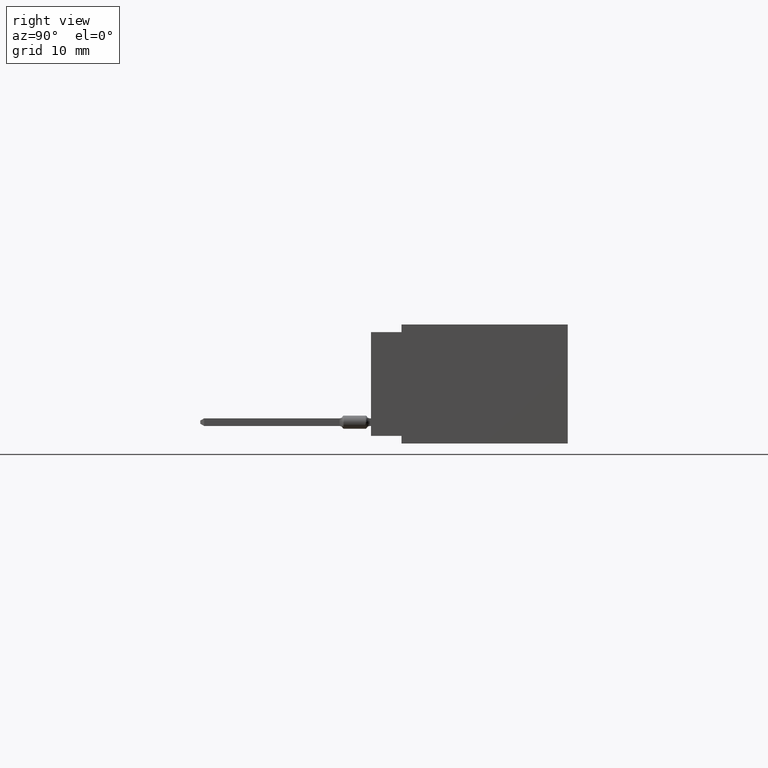
[diagram: clean part render]
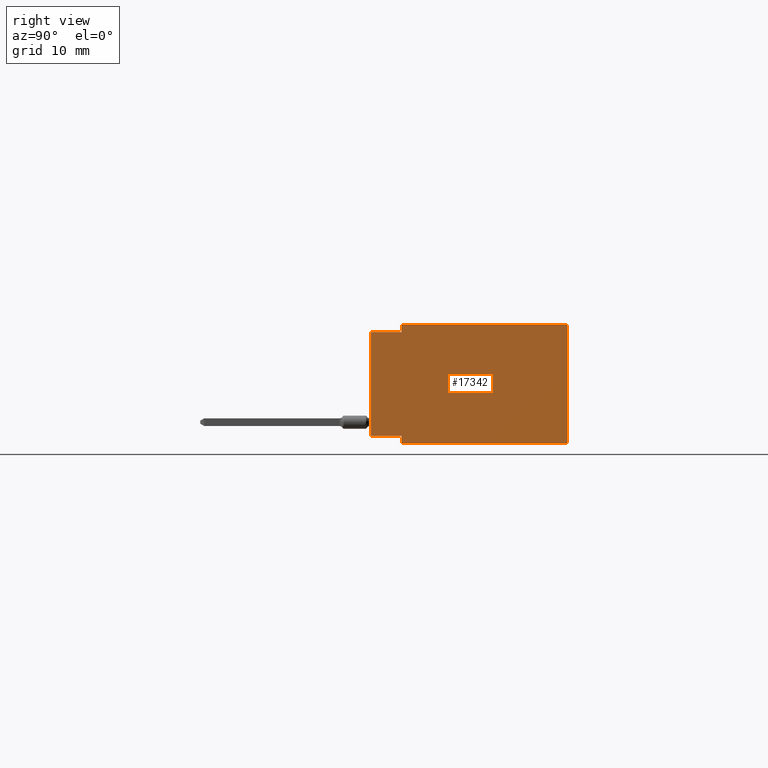
[diagram: same view with one face highlighted and labeled with its STEP entity id]
A machine part, right view. The second image highlights one B-rep face of the part: STEP entity #17342.
In plain terms, the highlighted planar face has unit normal (-1, 0, 0).
Its self-contained STEP definition (entity closure, byte-faithful):
#48 = FACE_OUTER_BOUND ( 'NONE', #20001, .T. ) ;
#581 = LINE ( 'NONE', #1972, #24839 ) ;
#1217 = DIRECTION ( 'NONE',  ( 0.0000000000000000000, 0.0000000000000000000, -1.000000000000000000 ) ) ;
#1577 = ORIENTED_EDGE ( 'NONE', *, *, #14865, .T. ) ;
#1972 = CARTESIAN_POINT ( 'NONE',  ( 2.035000000000000142, 0.1000000000000000056, -0.3900000000000000133 ) ) ;
#2169 = CARTESIAN_POINT ( 'NONE',  ( 2.035000000000000142, 0.0000000000000000000, -0.3649999999999999911 ) ) ;
#2182 = DIRECTION ( 'NONE',  ( 0.0000000000000000000, 0.0000000000000000000, 1.000000000000000000 ) ) ;
#2878 = DIRECTION ( 'NONE',  ( -0.0000000000000000000, -1.000000000000000000, -0.0000000000000000000 ) ) ;
#2960 = ORIENTED_EDGE ( 'NONE', *, *, #22961, .T. ) ;
#3009 = CARTESIAN_POINT ( 'NONE',  ( 2.035000000000000142, 0.0000000000000000000, -0.02500000000000000486 ) ) ;
#3158 = CARTESIAN_POINT ( 'NONE',  ( 2.035000000000000142, 0.6449999999999999067, 0.0000000000000000000 ) ) ;
#3399 = EDGE_CURVE ( 'NONE', #6872, #7502, #6926, .T. ) ;
#3991 = EDGE_CURVE ( 'NONE', #20744, #13765, #15153, .T. ) ;
#4098 = DIRECTION ( 'NONE',  ( -1.000000000000000000, 0.0000000000000000000, 0.0000000000000000000 ) ) ;
#4508 = VECTOR ( 'NONE', #6416, 39.37007874015748143 ) ;
#4723 = CARTESIAN_POINT ( 'NONE',  ( 2.035000000000000142, 0.1000000000000000056, 0.0000000000000000000 ) ) ;
#4839 = VECTOR ( 'NONE', #9357, 39.37007874015748143 ) ;
#5020 = DIRECTION ( 'NONE',  ( -0.0000000000000000000, -0.0000000000000000000, -1.000000000000000000 ) ) ;
#5430 = ORIENTED_EDGE ( 'NONE', *, *, #3399, .F. ) ;
#5729 = CARTESIAN_POINT ( 'NONE',  ( 2.035000000000000142, 0.0000000000000000000, 0.0000000000000000000 ) ) ;
#5793 = DIRECTION ( 'NONE',  ( -0.0000000000000000000, -1.000000000000000000, -0.0000000000000000000 ) ) ;
#6031 = VECTOR ( 'NONE', #5793, 39.37007874015748143 ) ;
#6123 = CARTESIAN_POINT ( 'NONE',  ( 2.035000000000000142, 0.6449999999999999067, -0.3900000000000000133 ) ) ;
#6137 = VERTEX_POINT ( 'NONE', #12129 ) ;
#6416 = DIRECTION ( 'NONE',  ( -0.0000000000000000000, -1.000000000000000000, -0.0000000000000000000 ) ) ;
#6568 = ORIENTED_EDGE ( 'NONE', *, *, #3991, .T. ) ;
#6855 = ORIENTED_EDGE ( 'NONE', *, *, #14516, .T. ) ;
#6872 = VERTEX_POINT ( 'NONE', #3158 ) ;
#6926 = LINE ( 'NONE', #12796, #20055 ) ;
#7502 = VERTEX_POINT ( 'NONE', #6123 ) ;
#8854 = CARTESIAN_POINT ( 'NONE',  ( 2.035000000000000142, 0.6449999999999999067, -0.3900000000000000133 ) ) ;
#9357 = DIRECTION ( 'NONE',  ( 0.0000000000000000000, 0.0000000000000000000, -1.000000000000000000 ) ) ;
#9521 = CARTESIAN_POINT ( 'NONE',  ( 2.035000000000000142, 0.0000000000000000000, -0.02500000000000000486 ) ) ;
#9770 = LINE ( 'NONE', #23221, #6031 ) ;
#10430 = LINE ( 'NONE', #3009, #17157 ) ;
#10627 = LINE ( 'NONE', #8854, #4508 ) ;
#10933 = EDGE_CURVE ( 'NONE', #15400, #20744, #10430, .T. ) ;
#11643 = CARTESIAN_POINT ( 'NONE',  ( 2.035000000000000142, 0.1000000000000000056, 0.0000000000000000000 ) ) ;
#11745 = DIRECTION ( 'NONE',  ( 0.0000000000000000000, 1.000000000000000000, 0.0000000000000000000 ) ) ;
#12129 = CARTESIAN_POINT ( 'NONE',  ( 2.035000000000000142, 0.1000000000000000056, -0.3649999999999999911 ) ) ;
#12796 = CARTESIAN_POINT ( 'NONE',  ( 2.035000000000000142, 0.6449999999999999067, 0.0000000000000000000 ) ) ;
#12818 = VECTOR ( 'NONE', #11745, 39.37007874015748143 ) ;
#13547 = ORIENTED_EDGE ( 'NONE', *, *, #18139, .T. ) ;
#13657 = CARTESIAN_POINT ( 'NONE',  ( 2.035000000000000142, 0.1000000000000000056, -0.02500000000000000486 ) ) ;
#13765 = VERTEX_POINT ( 'NONE', #15819 ) ;
#14516 = EDGE_CURVE ( 'NONE', #6872, #21975, #9770, .T. ) ;
#14687 = ORIENTED_EDGE ( 'NONE', *, *, #17006, .F. ) ;
#14865 = EDGE_CURVE ( 'NONE', #21975, #15400, #17107, .T. ) ;
#15153 = LINE ( 'NONE', #5729, #16298 ) ;
#15400 = VERTEX_POINT ( 'NONE', #13657 ) ;
#15819 = CARTESIAN_POINT ( 'NONE',  ( 2.035000000000000142, 0.0000000000000000000, -0.3649999999999999911 ) ) ;
#16298 = VECTOR ( 'NONE', #17193, 39.37007874015748143 ) ;
#17006 = EDGE_CURVE ( 'NONE', #7502, #19642, #10627, .T. ) ;
#17107 = LINE ( 'NONE', #11643, #4839 ) ;
#17157 = VECTOR ( 'NONE', #2878, 39.37007874015748143 ) ;
#17193 = DIRECTION ( 'NONE',  ( 0.0000000000000000000, 0.0000000000000000000, -1.000000000000000000 ) ) ;
#17342 = ADVANCED_FACE ( 'NONE', ( #48 ), #19501, .F. ) ;
#18139 = EDGE_CURVE ( 'NONE', #6137, #19642, #581, .T. ) ;
#18338 = AXIS2_PLACEMENT_3D ( 'NONE', #23445, #4098, #2182 ) ;
#19501 = PLANE ( 'NONE',  #18338 ) ;
#19607 = LINE ( 'NONE', #2169, #12818 ) ;
#19642 = VERTEX_POINT ( 'NONE', #23476 ) ;
#20001 = EDGE_LOOP ( 'NONE', ( #1577, #21412, #6568, #2960, #13547, #14687, #5430, #6855 ) ) ;
#20055 = VECTOR ( 'NONE', #1217, 39.37007874015748143 ) ;
#20744 = VERTEX_POINT ( 'NONE', #9521 ) ;
#21412 = ORIENTED_EDGE ( 'NONE', *, *, #10933, .T. ) ;
#21975 = VERTEX_POINT ( 'NONE', #4723 ) ;
#22961 = EDGE_CURVE ( 'NONE', #13765, #6137, #19607, .T. ) ;
#23221 = CARTESIAN_POINT ( 'NONE',  ( 2.035000000000000142, 0.6449999999999999067, 0.0000000000000000000 ) ) ;
#23445 = CARTESIAN_POINT ( 'NONE',  ( 2.035000000000000142, 0.6449999999999999067, 0.0000000000000000000 ) ) ;
#23476 = CARTESIAN_POINT ( 'NONE',  ( 2.035000000000000142, 0.1000000000000000056, -0.3900000000000000133 ) ) ;
#24839 = VECTOR ( 'NONE', #5020, 39.37007874015748143 ) ;